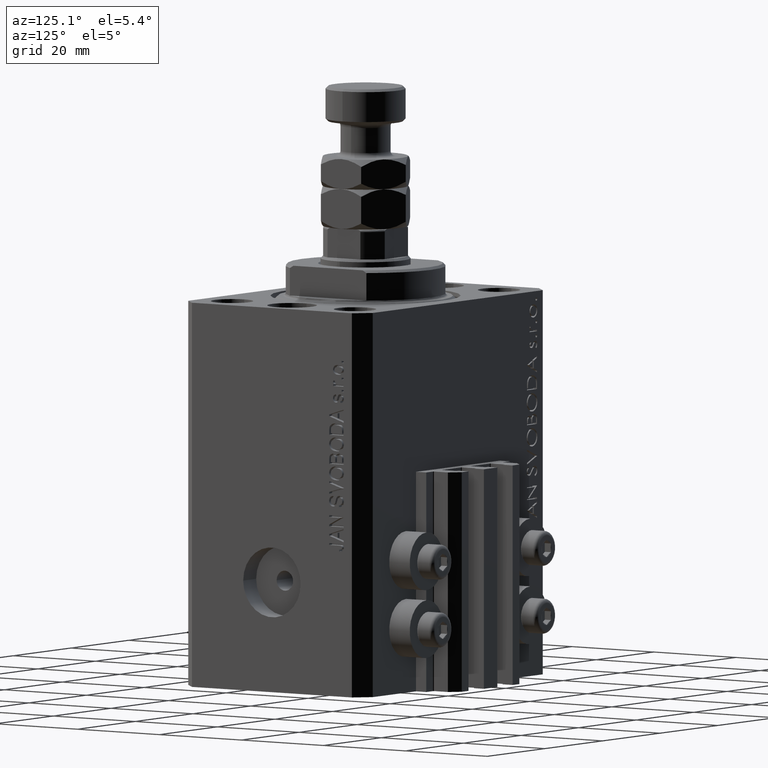
[diagram: clean part render]
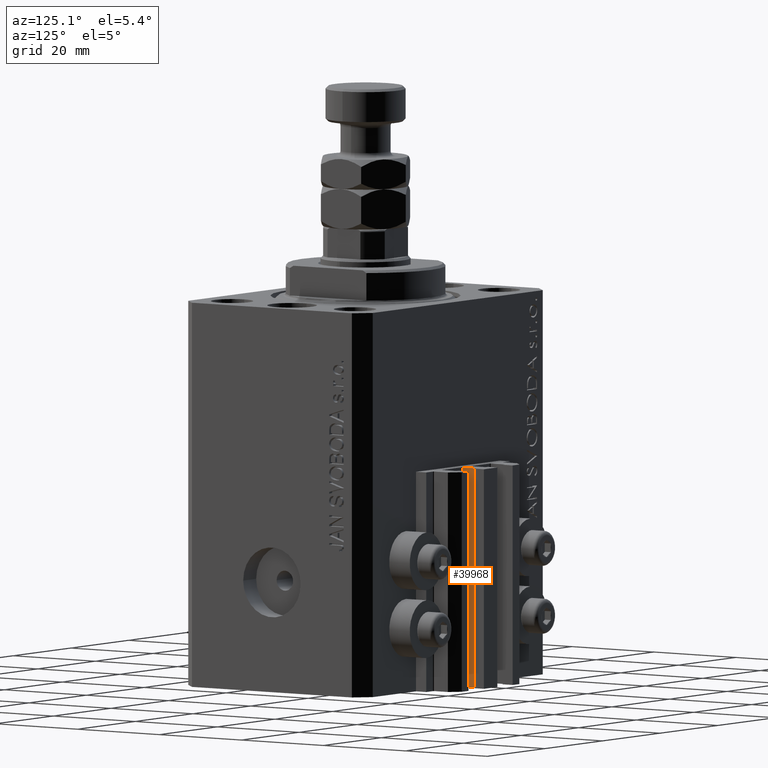
[diagram: same view with one face highlighted and labeled with its STEP entity id]
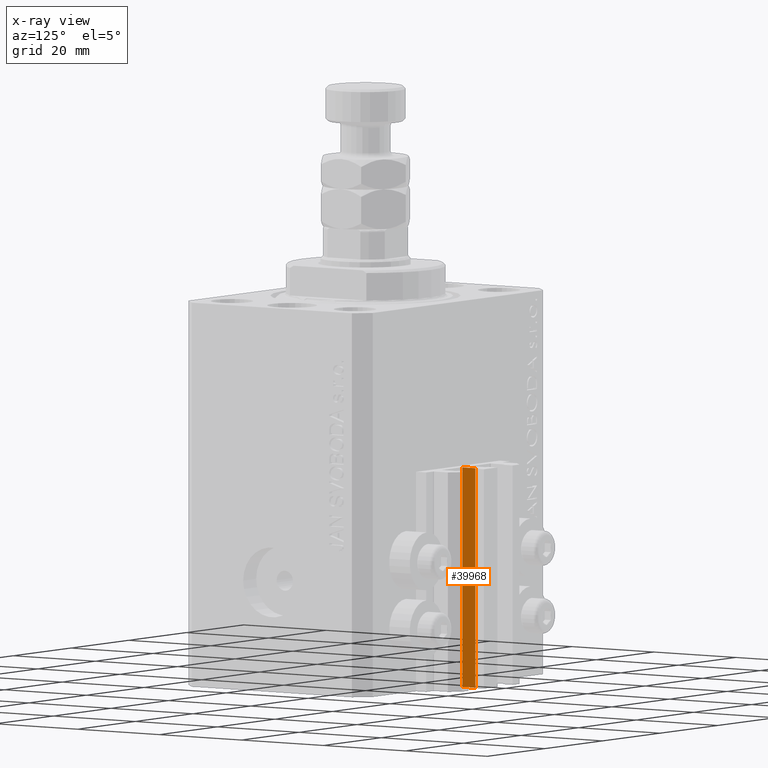
[diagram: x-ray of the same camera — body ghosted, the highlighted face saturated]
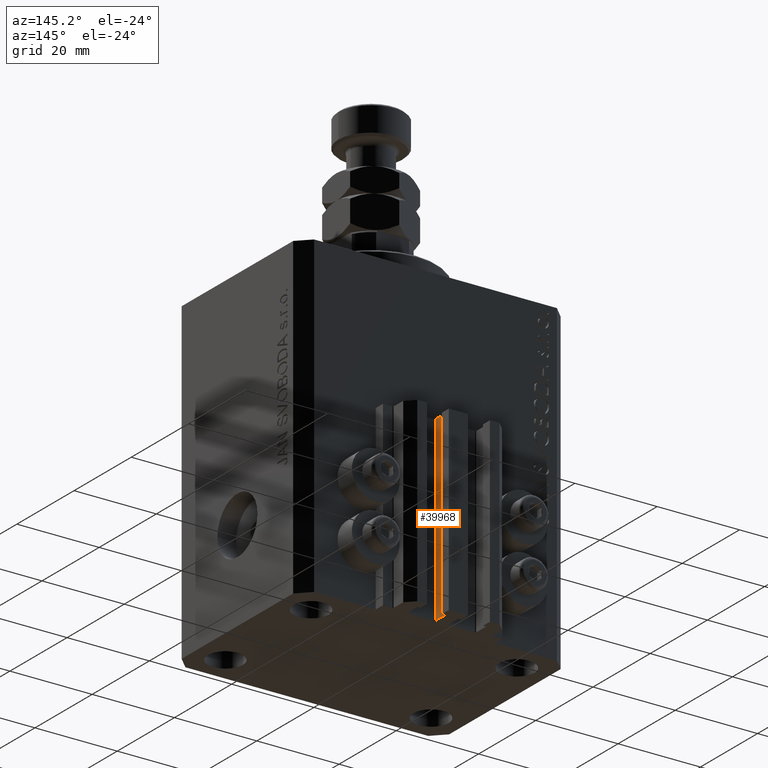
[diagram: same view with one face highlighted and labeled with its STEP entity id]
A machine part, auxiliary view. The second image highlights one B-rep face of the part: STEP entity #39968.
The next image is the same camera in x-ray: the body ghosted, the highlighted face saturated — about 0% of this face is hidden behind the body in this view.
A second angle (auxiliary view) of the same face is appended — the face is thin or edge-on in the first view.
In plain terms, the highlighted planar face has unit normal (1, 0, 0).
Its self-contained STEP definition (entity closure, byte-faithful):
#1662 = ORIENTED_EDGE ( 'NONE', *, *, #48886, .T. ) ;
#3221 = CARTESIAN_POINT ( 'NONE',  ( 1.600000000000000533, 24.69999999999949480, -77.00000000000000000 ) ) ;
#3228 = CARTESIAN_POINT ( 'NONE',  ( 1.600000000000000533, 24.69999999999949480, -33.00000000000000000 ) ) ;
#3612 = VECTOR ( 'NONE', #18294, 1000.000000000000000 ) ;
#3799 = EDGE_LOOP ( 'NONE', ( #21782, #17271, #24283, #1662 ) ) ;
#6430 = LINE ( 'NONE', #3221, #43161 ) ;
#9884 = VERTEX_POINT ( 'NONE', #38567 ) ;
#10490 = CARTESIAN_POINT ( 'NONE',  ( 1.599999999999999645, 24.69999999999949480, -77.00000000000000000 ) ) ;
#11098 = CARTESIAN_POINT ( 'NONE',  ( 1.599999999999999645, 24.69999999999949480, -33.00000000000000000 ) ) ;
#11607 = LINE ( 'NONE', #31851, #33347 ) ;
#14591 = DIRECTION ( 'NONE',  ( 0.000000000000000000, 1.000000000000000000, 0.000000000000000000 ) ) ;
#17271 = ORIENTED_EDGE ( 'NONE', *, *, #45737, .F. ) ;
#18294 = DIRECTION ( 'NONE',  ( 0.000000000000000000, 1.000000000000000000, 0.000000000000000000 ) ) ;
#19447 = DIRECTION ( 'NONE',  ( 0.000000000000000000, 0.000000000000000000, -1.000000000000000000 ) ) ;
#20476 = CARTESIAN_POINT ( 'NONE',  ( 1.599999999999999645, 24.69999999999949480, -77.00000000000000000 ) ) ;
#20959 = VERTEX_POINT ( 'NONE', #11098 ) ;
#21782 = ORIENTED_EDGE ( 'NONE', *, *, #23602, .F. ) ;
#23154 = PLANE ( 'NONE',  #33209 ) ;
#23602 = EDGE_CURVE ( 'NONE', #20959, #9884, #33615, .T. ) ;
#24283 = ORIENTED_EDGE ( 'NONE', *, *, #26091, .T. ) ;
#24604 = CARTESIAN_POINT ( 'NONE',  ( 1.600000000000000533, 27.89999999999950120, -77.00000000000000000 ) ) ;
#25967 = VERTEX_POINT ( 'NONE', #24604 ) ;
#26091 = EDGE_CURVE ( 'NONE', #38328, #25967, #6430, .T. ) ;
#26866 = FACE_OUTER_BOUND ( 'NONE', #3799, .T. ) ;
#27738 = VECTOR ( 'NONE', #31602, 1000.000000000000000 ) ;
#31602 = DIRECTION ( 'NONE',  ( 0.000000000000000000, 0.000000000000000000, 1.000000000000000000 ) ) ;
#31851 = CARTESIAN_POINT ( 'NONE',  ( 1.600000000000000533, 27.89999999999950120, -77.00000000000000000 ) ) ;
#33209 = AXIS2_PLACEMENT_3D ( 'NONE', #41925, #38233, #19447 ) ;
#33347 = VECTOR ( 'NONE', #46169, 1000.000000000000000 ) ;
#33615 = LINE ( 'NONE', #3228, #3612 ) ;
#34799 = LINE ( 'NONE', #20476, #27738 ) ;
#38233 = DIRECTION ( 'NONE',  ( 1.000000000000000000, 0.000000000000000000, 0.000000000000000000 ) ) ;
#38328 = VERTEX_POINT ( 'NONE', #10490 ) ;
#38567 = CARTESIAN_POINT ( 'NONE',  ( 1.600000000000000533, 27.89999999999950120, -33.00000000000000000 ) ) ;
#39968 = ADVANCED_FACE ( 'NONE', ( #26866 ), #23154, .T. ) ;
#41925 = CARTESIAN_POINT ( 'NONE',  ( 1.600000000000000533, 24.69999999999949480, -77.00000000000000000 ) ) ;
#43161 = VECTOR ( 'NONE', #14591, 1000.000000000000000 ) ;
#45737 = EDGE_CURVE ( 'NONE', #38328, #20959, #34799, .T. ) ;
#46169 = DIRECTION ( 'NONE',  ( 0.000000000000000000, 0.000000000000000000, 1.000000000000000000 ) ) ;
#48886 = EDGE_CURVE ( 'NONE', #25967, #9884, #11607, .T. ) ;